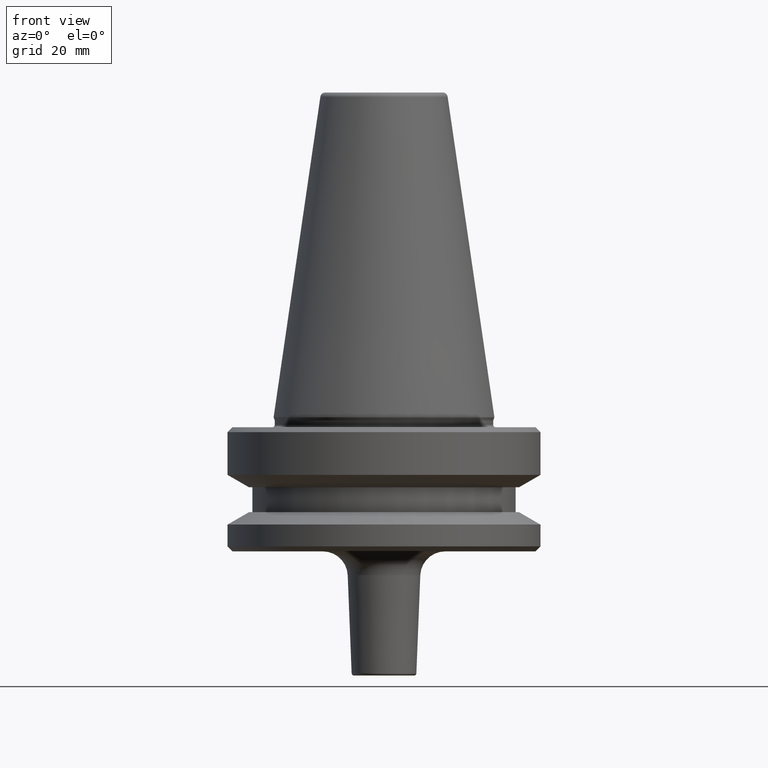
[diagram: clean part render]
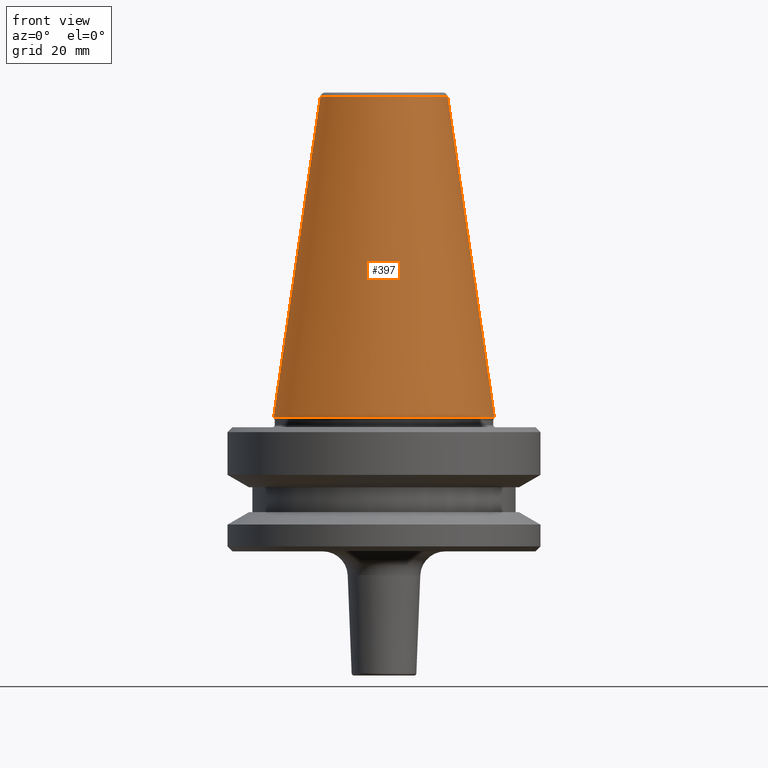
[diagram: same view with one face highlighted and labeled with its STEP entity id]
A machine part, front view. The second image highlights one B-rep face of the part: STEP entity #397.
In plain terms, the highlighted conical surface has half-angle 8.297 deg.
Its self-contained STEP definition (entity closure, byte-faithful):
#45 = CARTESIAN_POINT ( 'NONE',  ( 12.81220206925736900, 1.569042225414513200E-015, -0.8556918111122247000 ) ) ;
#48 = DIRECTION ( 'NONE',  ( -0.0000000000000000000, -0.0000000000000000000, 1.000000000000000000 ) ) ;
#91 = AXIS2_PLACEMENT_3D ( 'NONE', #947, #464, #1031 ) ;
#130 = DIRECTION ( 'NONE',  ( 0.1443081888881795900, 1.767265616126607700E-017, -0.9895327920891826600 ) ) ;
#151 = CARTESIAN_POINT ( 'NONE',  ( 0.0000000000000000000, 0.0000000000000000000, -0.8556918111122247000 ) ) ;
#198 = CARTESIAN_POINT ( 'NONE',  ( -12.81220206925736900, 0.0000000000000000000, -0.8556918111122247000 ) ) ;
#221 = VERTEX_POINT ( 'NONE', #298 ) ;
#240 = DIRECTION ( 'NONE',  ( 1.000000000000000000, 0.0000000000000000000, 0.0000000000000000000 ) ) ;
#298 = CARTESIAN_POINT ( 'NONE',  ( 22.22499999999993700, 0.0000000000000000000, -65.40000000000057400 ) ) ;
#299 = VERTEX_POINT ( 'NONE', #660 ) ;
#397 = ADVANCED_FACE ( 'NONE', ( #802 ), #730, .T. ) ;
#453 = ORIENTED_EDGE ( 'NONE', *, *, #735, .T. ) ;
#458 = ORIENTED_EDGE ( 'NONE', *, *, #749, .T. ) ;
#464 = DIRECTION ( 'NONE',  ( 0.0000000000000000000, 0.0000000000000000000, -1.000000000000000000 ) ) ;
#489 = DIRECTION ( 'NONE',  ( -0.1443081888881795900, 0.0000000000000000000, -0.9895327920891826600 ) ) ;
#526 = CARTESIAN_POINT ( 'NONE',  ( 0.0000000000000000000, 0.0000000000000000000, -65.40000000000057400 ) ) ;
#541 = ORIENTED_EDGE ( 'NONE', *, *, #717, .F. ) ;
#578 = CARTESIAN_POINT ( 'NONE',  ( 12.81220206925736900, 2.145409868259749100E-015, -0.8556918111122247000 ) ) ;
#592 = VERTEX_POINT ( 'NONE', #198 ) ;
#595 = EDGE_LOOP ( 'NONE', ( #541, #913, #458, #453 ) ) ;
#596 = LINE ( 'NONE', #45, #754 ) ;
#603 = DIRECTION ( 'NONE',  ( 1.000000000000000000, 0.0000000000000000000, 0.0000000000000000000 ) ) ;
#660 = CARTESIAN_POINT ( 'NONE',  ( -22.22499999999993700, 2.721777511104985000E-015, -65.40000000000057400 ) ) ;
#682 = CARTESIAN_POINT ( 'NONE',  ( -12.81220206925736900, 0.0000000000000000000, -0.8556918111122247000 ) ) ;
#694 = DIRECTION ( 'NONE',  ( -0.0000000000000000000, -0.0000000000000000000, 1.000000000000000000 ) ) ;
#717 = EDGE_CURVE ( 'NONE', #1014, #221, #596, .T. ) ;
#722 = VECTOR ( 'NONE', #489, 1000.000000000000000 ) ;
#723 = AXIS2_PLACEMENT_3D ( 'NONE', #526, #48, #603 ) ;
#730 = CONICAL_SURFACE ( 'NONE', #91, 12.81220206925736900, 0.1448138077623198300 ) ;
#735 = EDGE_CURVE ( 'NONE', #299, #221, #977, .T. ) ;
#749 = EDGE_CURVE ( 'NONE', #592, #299, #952, .T. ) ;
#754 = VECTOR ( 'NONE', #130, 1000.000000000000000 ) ;
#802 = FACE_OUTER_BOUND ( 'NONE', #595, .T. ) ;
#832 = EDGE_CURVE ( 'NONE', #592, #1014, #1010, .T. ) ;
#894 = AXIS2_PLACEMENT_3D ( 'NONE', #151, #694, #240 ) ;
#913 = ORIENTED_EDGE ( 'NONE', *, *, #832, .F. ) ;
#947 = CARTESIAN_POINT ( 'NONE',  ( 0.0000000000000000000, 0.0000000000000000000, -0.8556918111122247000 ) ) ;
#952 = LINE ( 'NONE', #682, #722 ) ;
#977 = CIRCLE ( 'NONE', #723, 22.22499999999993700 ) ;
#1010 = CIRCLE ( 'NONE', #894, 12.81220206925736900 ) ;
#1014 = VERTEX_POINT ( 'NONE', #578 ) ;
#1031 = DIRECTION ( 'NONE',  ( -1.000000000000000000, 0.0000000000000000000, 0.0000000000000000000 ) ) ;